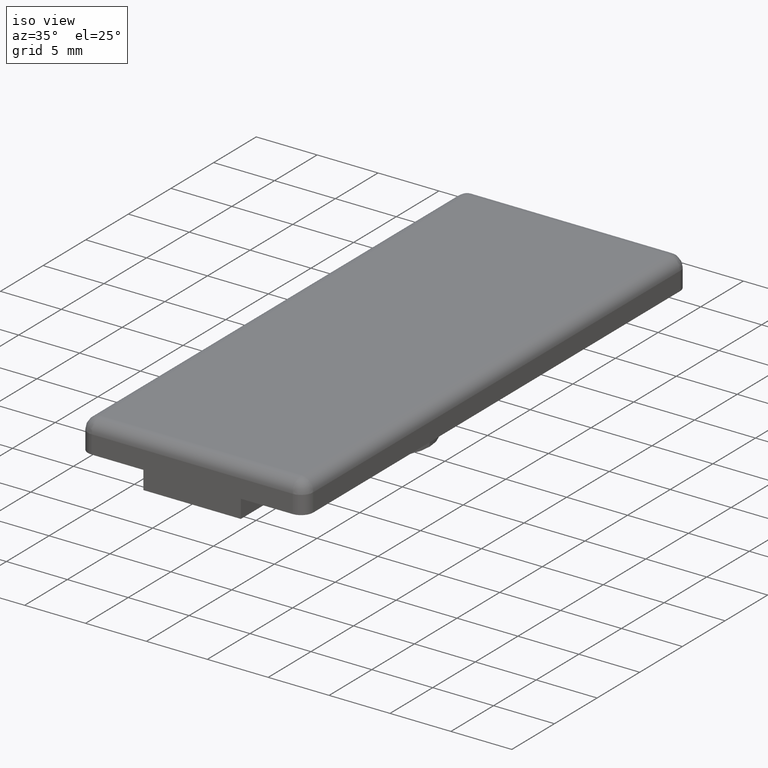
[diagram: clean part render]
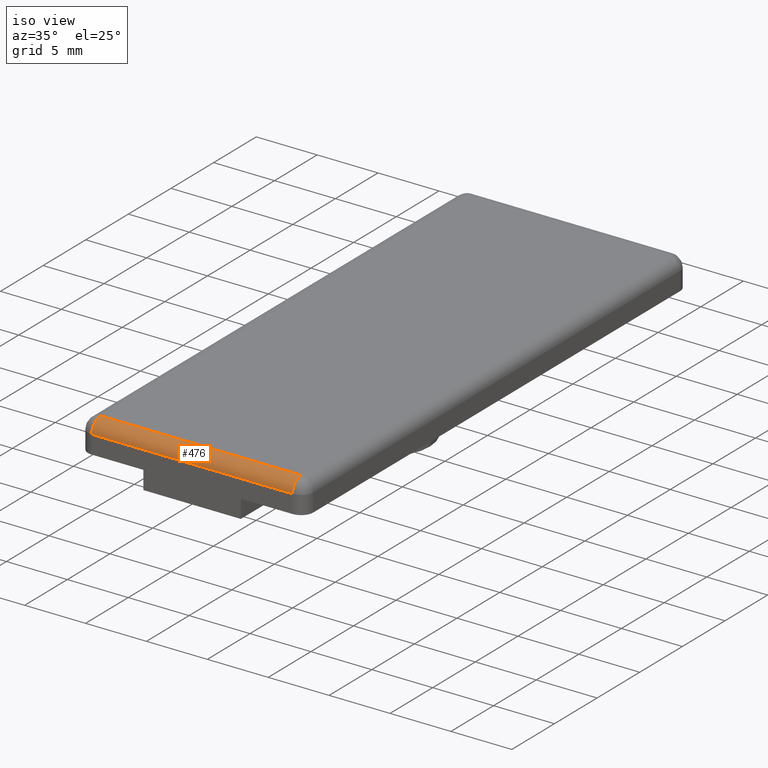
[diagram: same view with one face highlighted and labeled with its STEP entity id]
A machine part, iso view. The second image highlights one B-rep face of the part: STEP entity #476.
In plain terms, the highlighted cylindrical surface (edge-blend (fillet) strip) has radius 1 mm, axis along (1, 0, 0).
Its self-contained STEP definition (entity closure, byte-faithful):
#25=CYLINDRICAL_SURFACE('',#521,1.);
#56=FACE_OUTER_BOUND('',#90,.T.);
#90=EDGE_LOOP('',(#412,#413,#414,#415));
#128=LINE('',#755,#172);
#139=LINE('',#784,#183);
#172=VECTOR('',#608,16.4999999999341);
#183=VECTOR('',#639,16.4999999999341);
#197=CIRCLE('',#519,0.999999999996);
#199=CIRCLE('',#522,1.);
#234=VERTEX_POINT('',#749);
#236=VERTEX_POINT('',#753);
#243=VERTEX_POINT('',#779);
#244=VERTEX_POINT('',#783);
#284=EDGE_CURVE('',#234,#236,#128,.T.);
#298=EDGE_CURVE('',#243,#244,#139,.T.);
#301=EDGE_CURVE('',#244,#236,#197,.T.);
#303=EDGE_CURVE('',#234,#243,#199,.T.);
#412=ORIENTED_EDGE('',*,*,#284,.T.);
#413=ORIENTED_EDGE('',*,*,#301,.F.);
#414=ORIENTED_EDGE('',*,*,#298,.F.);
#415=ORIENTED_EDGE('',*,*,#303,.F.);
#476=ADVANCED_FACE('',(#56),#25,.T.);
#519=AXIS2_PLACEMENT_3D('',#865,#645,#646);
#521=AXIS2_PLACEMENT_3D('',#867,#649,#650);
#522=AXIS2_PLACEMENT_3D('',#868,#651,#652);
#608=DIRECTION('',(-1.,0.,0.));
#639=DIRECTION('',(-1.,0.,0.));
#645=DIRECTION('center_axis',(-1.,0.,0.));
#646=DIRECTION('ref_axis',(0.,-1.,0.));
#649=DIRECTION('center_axis',(1.,0.,0.));
#650=DIRECTION('ref_axis',(0.,0.,1.));
#651=DIRECTION('center_axis',(1.,0.,0.));
#652=DIRECTION('ref_axis',(0.,0.,1.));
#749=CARTESIAN_POINT('',(8.2499999999668,-21.49999999991,2.5));
#753=CARTESIAN_POINT('',(-8.24999999996726,-21.4999999999141,2.5));
#755=CARTESIAN_POINT('',(8.2499999999668,-21.49999999991,2.5));
#779=CARTESIAN_POINT('',(8.2499999999668,-22.49999999991,1.5));
#783=CARTESIAN_POINT('',(-8.24999999996726,-22.49999999991,1.5));
#784=CARTESIAN_POINT('',(8.2499999999668,-22.49999999991,1.5));
#865=CARTESIAN_POINT('Origin',(-8.24999999996726,-21.4999999999141,1.5));
#867=CARTESIAN_POINT('Origin',(8.2499999999668,-21.49999999991,1.5));
#868=CARTESIAN_POINT('Origin',(8.2499999999668,-21.49999999991,1.5));